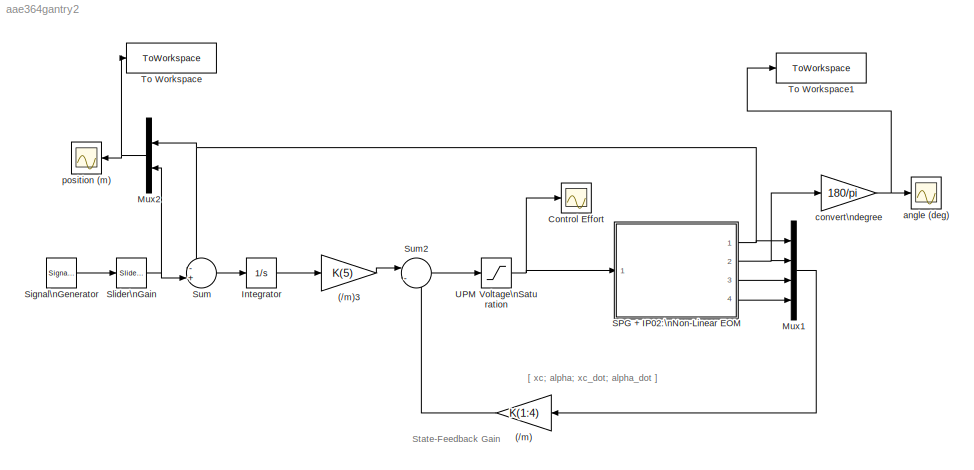
MODEL aae364gantry2
KIND model
BLOCK [Gain] (//m)
  Gain = K(1:4)
  Multiplication = Matrix(K*u)
  OutDataTypeStr = Inherit: Same as input
  ParamDataTypeStr = Inherit: Same as input
  SID = 1
  SaturateOnIntegerOverflow = on
BLOCK [Gain] (//m)3
  Gain = K(5)
  OutDataTypeStr = Inherit: Same as input
  ParamDataTypeStr = Inherit: Same as input
  SID = 2
  SaturateOnIntegerOverflow = on
BLOCK [Scope] Control Effort
  Floating = off
  NumInputPorts = 1
  Ports = [1]
  SID = 3
  ScopeSpecificationString = C++SS(StrPVP('Location','[7, 54, 784, 586]'),StrPVP('Open','off'),StrPVP('TickLabels','on'),MxPVP('AxesTitles',54,'struct(''axes1'',''%<SignalLabel>'')'),StrPVP('ShowLegends','off'),StrPVP('TimeRange','5'),StrPVP('YMin','-35'),StrPVP('YMax','35'),StrPVP('SaveName','ScopeData2'),StrPVP('BlockParamSampleTime','0'),StrPVP('LimitDataPoints','on'),StrPVP('DataFormat','Array'),StrPVP('Decimation','1'),S...<+37ch>
BLOCK [Integrator] Integrator
  Ports = [1, 1]
  SID = 4
BLOCK [Mux] Mux1
  DisplayOption = bar
  Ports = [4, 1]
  SID = 5
BLOCK [Mux] Mux2
  DisplayOption = bar
  Inputs = 2
  Ports = [2, 1]
  SID = 6
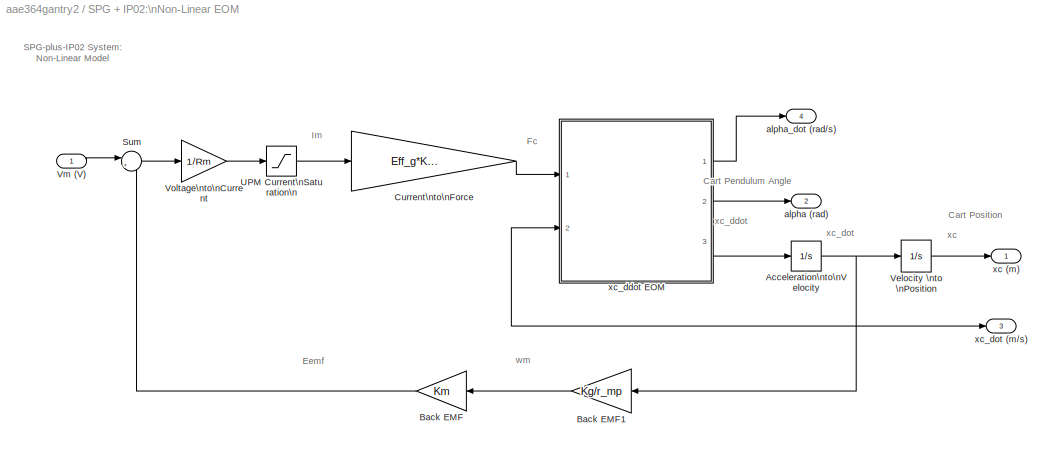
BLOCK [SubSystem] SPG + IP02:\nNon-Linear EOM
  Ports = [1, 4]
  RequestExecContextInheritance = off
  SID = 7
BLOCK [Integrator] SPG + IP02:\nNon-Linear EOM/Acceleration\nto\nVelocity
  Ports = [1, 1]
  SID = 9
BLOCK [Gain] SPG + IP02:\nNon-Linear EOM/Back EMF
  Gain = Km
  OutDataTypeStr = Inherit: Same as input
  ParamDataTypeStr = Inherit: Same as input
  SID = 10
  SaturateOnIntegerOverflow = on
BLOCK [Gain] SPG + IP02:\nNon-Linear EOM/Back EMF1
  Gain = Kg/r_mp
  OutDataTypeStr = Inherit: Same as input
  ParamDataTypeStr = Inherit: Same as input
  SID = 11
  SaturateOnIntegerOverflow = on
BLOCK [Gain] SPG + IP02:\nNon-Linear EOM/Current\nto\nForce
  Gain = Eff_g*Kg*Eff_m*Kt/r_mp
  OutDataTypeStr = Inherit: Same as input
  ParamDataTypeStr = Inherit: Same as input
  SID = 12
  SaturateOnIntegerOverflow = on
BLOCK [Sum] SPG + IP02:\nNon-Linear EOM/Sum
  InputSameDT = on
  Inputs = |+-
  OutDataTypeStr = Inherit: Same as first input
  Ports = [2, 1]
  SID = 13
  SaturateOnIntegerOverflow = on
BLOCK [Saturate] SPG + IP02:\nNon-Linear EOM/UPM Current\nSaturation\n
  LowerLimit = - IMAX_UPM
  SID = 14
  UpperLimit = IMAX_UPM
BLOCK [Integrator] SPG + IP02:\nNon-Linear EOM/Velocity \nto \nPosition
  Ports = [1, 1]
  SID = 15
BLOCK [Inport] SPG + IP02:\nNon-Linear EOM/Vm (V)
  SID = 8
BLOCK [Gain] SPG + IP02:\nNon-Linear EOM/Voltage\nto\nCurrent
  Gain = 1/Rm
  OutDataTypeStr = Inherit: Same as input
  ParamDataTypeStr = Inherit: Same as input
  SID = 16
  SaturateOnIntegerOverflow = on
BLOCK [Outport] SPG + IP02:\nNon-Linear EOM/alpha (rad)
  Port = 2
  SID = 105
BLOCK [Outport] SPG + IP02:\nNon-Linear EOM/alpha_dot (rad//s)
  InitialOutput = 0
  Port = 4
  SID = 107
BLOCK [Outport] SPG + IP02:\nNon-Linear EOM/xc (m)
  SID = 104
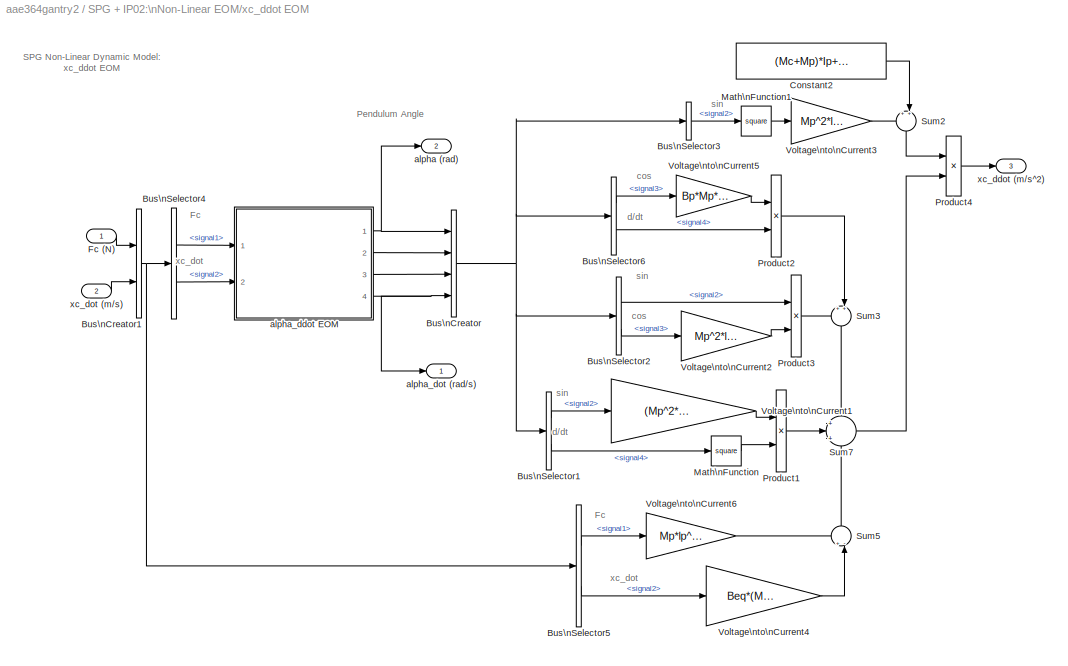
BLOCK [SubSystem] SPG + IP02:\nNon-Linear EOM/xc_ddot EOM
  Ports = [2, 3]
  RequestExecContextInheritance = off
  SID = 17
BLOCK [BusCreator] SPG + IP02:\nNon-Linear EOM/xc_ddot EOM/Bus\nCreator
  DisplayOption = bar
  InheritFromInputs = on
  Inputs = 4
  Ports = [4, 1]
  SID = 20
BLOCK [BusCreator] SPG + IP02:\nNon-Linear EOM/xc_ddot EOM/Bus\nCreator1
  DisplayOption = bar
  InheritFromInputs = on
  Inputs = 2
  Ports = [2, 1]
  SID = 21
BLOCK [BusSelector] SPG + IP02:\nNon-Linear EOM/xc_ddot EOM/Bus\nSelector1
  OutputSignals = signal2,signal4
  Ports = [1, 2]
  SID = 22
BLOCK [BusSelector] SPG + IP02:\nNon-Linear EOM/xc_ddot EOM/Bus\nSelector2
  OutputSignals = signal2,signal3
  Ports = [1, 2]
  SID = 23
BLOCK [BusSelector] SPG + IP02:\nNon-Linear EOM/xc_ddot EOM/Bus\nSelector3
  OutputSignals = signal2
  Ports = [1, 1]
  SID = 24
BLOCK [BusSelector] SPG + IP02:\nNon-Linear EOM/xc_ddot EOM/Bus\nSelector4
  OutputSignals = signal1,signal2
  Ports = [1, 2]
  SID = 25
BLOCK [BusSelector] SPG + IP02:\nNon-Linear EOM/xc_ddot EOM/Bus\nSelector5
  OutputSignals = signal1,signal2
  Ports = [1, 2]
  SID = 26
BLOCK [BusSelector] SPG + IP02:\nNon-Linear EOM/xc_ddot EOM/Bus\nSelector6
  OutputSignals = signal3,signal4
  Ports = [1, 2]
  SID = 27
BLOCK [Constant] SPG + IP02:\nNon-Linear EOM/xc_ddot EOM/Constant2
  SID = 28
  Value = (Mc+Mp)*Ip+Mc*Mp*lp^2
BLOCK [Inport] SPG + IP02:\nNon-Linear EOM/xc_ddot EOM/Fc (N)
  SID = 18
BLOCK [Math] SPG + IP02:\nNon-Linear EOM/xc_ddot EOM/Math\nFunction
  Operator = square
  Ports = [1, 1]
  SID = 29
  SignedPower = on
BLOCK [Math] SPG + IP02:\nNon-Linear EOM/xc_ddot EOM/Math\nFunction1
  Operator = square
  Ports = [1, 1]
  SID = 30
  SignedPower = on
BLOCK [Product] SPG + IP02:\nNon-Linear EOM/xc_ddot EOM/Product1
  InputSameDT = on
  OutDataTypeStr = Inherit: Same as first input
  Ports = [2, 1]
  RndMeth = Zero
  SID = 31
  SaturateOnIntegerOverflow = on
BLOCK [Product] SPG + IP02:\nNon-Linear EOM/xc_ddot EOM/Product2
  InputSameDT = on
  OutDataTypeStr = Inherit: Same as first input
  Ports = [2, 1]
  RndMeth = Zero
  SID = 32
  SaturateOnIntegerOverflow = on
BLOCK [Product] SPG + IP02:\nNon-Linear EOM/xc_ddot EOM/Product3
  InputSameDT = on
  OutDataTypeStr = Inherit: Same as first input
  Ports = [2, 1]
  RndMeth = Zero
  SID = 33
  SaturateOnIntegerOverflow = on
BLOCK [Product] SPG + IP02:\nNon-Linear EOM/xc_ddot EOM/Product4
  InputSameDT = on
  Inputs = /*
  OutDataTypeStr = Inherit: Same as first input
  Ports = [2, 1]
  RndMeth = Zero
  SID = 34
  SaturateOnIntegerOverflow = on
BLOCK [Sum] SPG + IP02:\nNon-Linear EOM/xc_ddot EOM/Sum2
  InputSameDT = on
  Inputs = ++|
  NameLocation = left
  OutDataTypeStr = Inherit: Same as first input
  Ports = [2, 1]
  SID = 35
  SaturateOnIntegerOverflow = on
BLOCK [Sum] SPG + IP02:\nNon-Linear EOM/xc_ddot EOM/Sum3
  InputSameDT = on
  Inputs = ++|
  NameLocation = left
  OutDataTypeStr = Inherit: Same as first input
  Ports = [2, 1]
  SID = 36
  SaturateOnIntegerOverflow = on
BLOCK [Sum] SPG + IP02:\nNon-Linear EOM/xc_ddot EOM/Sum5
  InputSameDT = on
  Inputs = +-|
  NameLocation = left
  OutDataTypeStr = Inherit: Same as first input
  Ports = [2, 1]
  SID = 37
  SaturateOnIntegerOverflow = on
BLOCK [Sum] SPG + IP02:\nNon-Linear EOM/xc_ddot EOM/Sum7
  InputSameDT = on
  Inputs = +|+|+
  OutDataTypeStr = Inherit: Same as first input
  Ports = [3, 1]
  SID = 38
  SaturateOnIntegerOverflow = on
BLOCK [Gain] SPG + IP02:\nNon-Linear EOM/xc_ddot EOM/Voltage\nto\nCurrent1
  Gain = (Mp^2*lp^3+Ip*Mp*lp)
  OutDataTypeStr = Inherit: Same as input
  ParamDataTypeStr = Inherit: Same as input
  SID = 39
  SaturateOnIntegerOverflow = on
BLOCK [Gain] SPG + IP02:\nNon-Linear EOM/xc_ddot EOM/Voltage\nto\nCurrent2
  Gain = Mp^2*lp^2*g
  OutDataTypeStr = Inherit: Same as input
  ParamDataTypeStr = Inherit: Same as input
  SID = 40
  SaturateOnIntegerOverflow = on
BLOCK [Gain] SPG + IP02:\nNon-Linear EOM/xc_ddot EOM/Voltage\nto\nCurrent3
  Gain = Mp^2*lp^2
  OutDataTypeStr = Inherit: Same as input
  ParamDataTypeStr = Inherit: Same as input
  SID = 41
  SaturateOnIntegerOverflow = on
BLOCK [Gain] SPG + IP02:\nNon-Linear EOM/xc_ddot EOM/Voltage\nto\nCurrent4
  Gain = Beq*(Mp*lp^2+Ip)
  OutDataTypeStr = Inherit: Same as input
  ParamDataTypeStr = Inherit: Same as input
  SID = 42
  SaturateOnIntegerOverflow = on
BLOCK [Gain] SPG + IP02:\nNon-Linear EOM/xc_ddot EOM/Voltage\nto\nCurrent5
  Gain = Bp*Mp*lp
  OutDataTypeStr = Inherit: Same as input
  ParamDataTypeStr = Inherit: Same as input
  SID = 43
  SaturateOnIntegerOverflow = on
BLOCK [Gain] SPG + IP02:\nNon-Linear EOM/xc_ddot EOM/Voltage\nto\nCurrent6
  Gain = Mp*lp^2+Ip
  OutDataTypeStr = Inherit: Same as input
  ParamDataTypeStr = Inherit: Same as input
  SID = 44
  SaturateOnIntegerOverflow = on
BLOCK [Outport] SPG + IP02:\nNon-Linear EOM/xc_ddot EOM/alpha (rad)
  Port = 2
  SID = 89
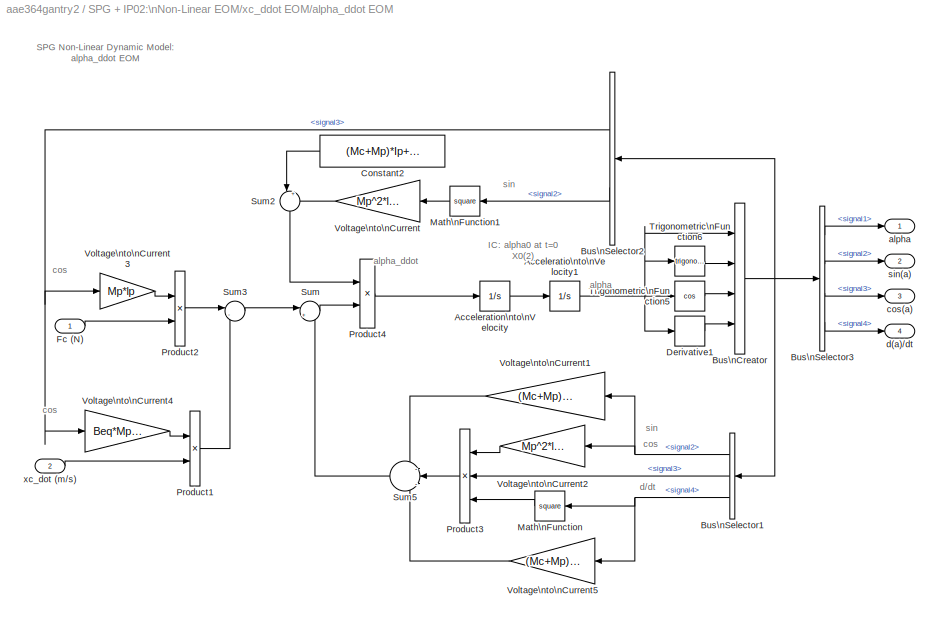
BLOCK [SubSystem] SPG + IP02:\nNon-Linear EOM/xc_ddot EOM/alpha_ddot EOM
  Ports = [2, 4]
  RequestExecContextInheritance = off
  SID = 45
BLOCK [Integrator] SPG + IP02:\nNon-Linear EOM/xc_ddot EOM/alpha_ddot EOM/Acceleratio\nto\nVelocity1
  InitialCondition = X0(2)
  Ports = [1, 1]
  SID = 48
BLOCK [Integrator] SPG + IP02:\nNon-Linear EOM/xc_ddot EOM/alpha_ddot EOM/Acceleration\nto\nVelocity
  Ports = [1, 1]
  SID = 49
BLOCK [BusCreator] SPG + IP02:\nNon-Linear EOM/xc_ddot EOM/alpha_ddot EOM/Bus\nCreator
  DisplayOption = bar
  InheritFromInputs = on
  Inputs = 4
  Ports = [4, 1]
  SID = 50
BLOCK [BusSelector] SPG + IP02:\nNon-Linear EOM/xc_ddot EOM/alpha_ddot EOM/Bus\nSelector1
  OutputSignals = signal2,signal3,signal4
  Ports = [1, 3]
  SID = 51
BLOCK [BusSelector] SPG + IP02:\nNon-Linear EOM/xc_ddot EOM/alpha_ddot EOM/Bus\nSelector2
  OutputSignals = signal3,signal2
  Ports = [1, 2]
  SID = 52
BLOCK [BusSelector] SPG + IP02:\nNon-Linear EOM/xc_ddot EOM/alpha_ddot EOM/Bus\nSelector3
  OutputSignals = signal1,signal2,signal3,signal4
  Ports = [1, 4]
  SID = 53
BLOCK [Constant] SPG + IP02:\nNon-Linear EOM/xc_ddot EOM/alpha_ddot EOM/Constant2
  SID = 54
  Value = (Mc+Mp)*Ip+Mc*Mp*lp^2
BLOCK [Derivative] SPG + IP02:\nNon-Linear EOM/xc_ddot EOM/alpha_ddot EOM/Derivative1
  SID = 55
BLOCK [Inport] SPG + IP02:\nNon-Linear EOM/xc_ddot EOM/alpha_ddot EOM/Fc (N)
  SID = 46
BLOCK [Math] SPG + IP02:\nNon-Linear EOM/xc_ddot EOM/alpha_ddot EOM/Math\nFunction
  Operator = square
  Ports = [1, 1]
  SID = 56
  SignedPower = on
BLOCK [Math] SPG + IP02:\nNon-Linear EOM/xc_ddot EOM/alpha_ddot EOM/Math\nFunction1
  Operator = square
  Ports = [1, 1]
  SID = 57
  SignedPower = on
BLOCK [Product] SPG + IP02:\nNon-Linear EOM/xc_ddot EOM/alpha_ddot EOM/Product1
  InputSameDT = on
  OutDataTypeStr = Inherit: Same as first input
  Ports = [2, 1]
  RndMeth = Zero
  SID = 58
  SaturateOnIntegerOverflow = on
BLOCK [Product] SPG + IP02:\nNon-Linear EOM/xc_ddot EOM/alpha_ddot EOM/Product2
  InputSameDT = on
  OutDataTypeStr = Inherit: Same as first input
  Ports = [2, 1]
  RndMeth = Zero
  SID = 59
  SaturateOnIntegerOverflow = on
BLOCK [Product] SPG + IP02:\nNon-Linear EOM/xc_ddot EOM/alpha_ddot EOM/Product3
  InputSameDT = on
  Inputs = 3
  OutDataTypeStr = Inherit: Same as first input
  Ports = [3, 1]
  RndMeth = Zero
  SID = 60
  SaturateOnIntegerOverflow = on
BLOCK [Product] SPG + IP02:\nNon-Linear EOM/xc_ddot EOM/alpha_ddot EOM/Product4
  InputSameDT = on
  Inputs = /*
  OutDataTypeStr = Inherit: Same as first input
  Ports = [2, 1]
  RndMeth = Zero
  SID = 61
  SaturateOnIntegerOverflow = on
BLOCK [Sum] SPG + IP02:\nNon-Linear EOM/xc_ddot EOM/alpha_ddot EOM/Sum
  InputSameDT = on
  Inputs = |++
  OutDataTypeStr = Inherit: Same as first input
  Ports = [2, 1]
  SID = 62
  SaturateOnIntegerOverflow = on
BLOCK [Sum] SPG + IP02:\nNon-Linear EOM/xc_ddot EOM/alpha_ddot EOM/Sum2
  InputSameDT = on
  Inputs = |++
  NameLocation = left
  OutDataTypeStr = Inherit: Same as first input
  Ports = [2, 1]
  SID = 63
  SaturateOnIntegerOverflow = on
BLOCK [Sum] SPG + IP02:\nNon-Linear EOM/xc_ddot EOM/alpha_ddot EOM/Sum3
  InputSameDT = on
  Inputs = |-+
  OutDataTypeStr = Inherit: Same as first input
  Ports = [2, 1]
  SID = 64
  SaturateOnIntegerOverflow = on
BLOCK [Sum] SPG + IP02:\nNon-Linear EOM/xc_ddot EOM/alpha_ddot EOM/Sum5
  InputSameDT = on
  Inputs = -|-|-
  OutDataTypeStr = Inherit: Same as first input
  Ports = [3, 1]
  SID = 65
  SaturateOnIntegerOverflow = on
BLOCK [Trigonometry] SPG + IP02:\nNon-Linear EOM/xc_ddot EOM/alpha_ddot EOM/Trigonometric\nFunction5
  Operator = cos
  Ports = [1, 1]
  SID = 66
BLOCK [Trigonometry] SPG + IP02:\nNon-Linear EOM/xc_ddot EOM/alpha_ddot EOM/Trigonometric\nFunction6
  Ports = [1, 1]
  SID = 67
BLOCK [Gain] SPG + IP02:\nNon-Linear EOM/xc_ddot EOM/alpha_ddot EOM/Voltage\nto\nCurrent
  Gain = Mp^2*lp^2
  OutDataTypeStr = Inherit: Same as input
  ParamDataTypeStr = Inherit: Same as input
  SID = 68
  SaturateOnIntegerOverflow = on
BLOCK [Gain] SPG + IP02:\nNon-Linear EOM/xc_ddot EOM/alpha_ddot EOM/Voltage\nto\nCurrent1
  Gain = (Mc+Mp)*Mp*lp*g
  OutDataTypeStr = Inherit: Same as input
  ParamDataTypeStr = Inherit: Same as input
  SID = 69
  SaturateOnIntegerOverflow = on
BLOCK [Gain] SPG + IP02:\nNon-Linear EOM/xc_ddot EOM/alpha_ddot EOM/Voltage\nto\nCurrent2
  Gain = Mp^2*lp^2
  OutDataTypeStr = Inherit: Same as input
  ParamDataTypeStr = Inherit: Same as input
  SID = 70
  SaturateOnIntegerOverflow = on
BLOCK [Gain] SPG + IP02:\nNon-Linear EOM/xc_ddot EOM/alpha_ddot EOM/Voltage\nto\nCurrent3
  Gain = Mp*lp
  OutDataTypeStr = Inherit: Same as input
  ParamDataTypeStr = Inherit: Same as input
  SID = 71
  SaturateOnIntegerOverflow = on
BLOCK [Gain] SPG + IP02:\nNon-Linear EOM/xc_ddot EOM/alpha_ddot EOM/Voltage\nto\nCurrent4
  Gain = Beq*Mp*lp
  OutDataTypeStr = Inherit: Same as input
  ParamDataTypeStr = Inherit: Same as input
  SID = 72
  SaturateOnIntegerOverflow = on
BLOCK [Gain] SPG + IP02:\nNon-Linear EOM/xc_ddot EOM/alpha_ddot EOM/Voltage\nto\nCurrent5
  Gain = (Mc+Mp)*Bp
  OutDataTypeStr = Inherit: Same as input
  ParamDataTypeStr = Inherit: Same as input
  SID = 73
  SaturateOnIntegerOverflow = on
BLOCK [Outport] SPG + IP02:\nNon-Linear EOM/xc_ddot EOM/alpha_ddot EOM/alpha
  InitialOutput = 0
  SID = 74
BLOCK [Outport] SPG + IP02:\nNon-Linear EOM/xc_ddot EOM/alpha_ddot EOM/cos(a)
  InitialOutput = 0
  Port = 3
  SID = 76
BLOCK [Outport] SPG + IP02:\nNon-Linear EOM/xc_ddot EOM/alpha_ddot EOM/d(a)//dt
  InitialOutput = 0
  Port = 4
  SID = 77
BLOCK [Outport] SPG + IP02:\nNon-Linear EOM/xc_ddot EOM/alpha_ddot EOM/sin(a)
  InitialOutput = 0
  Port = 2
  SID = 75
BLOCK [Inport] SPG + IP02:\nNon-Linear EOM/xc_ddot EOM/alpha_ddot EOM/xc_dot (m//s)
  Port = 2
  SID = 47
BLOCK [Outport] SPG + IP02:\nNon-Linear EOM/xc_ddot EOM/alpha_dot (rad//s)
  SID = 88
BLOCK [Outport] SPG + IP02:\nNon-Linear EOM/xc_ddot EOM/xc_ddot (m//s^2)
  Port = 3
  SID = 90
BLOCK [Inport] SPG + IP02:\nNon-Linear EOM/xc_ddot EOM/xc_dot (m//s)
  Port = 2
  SID = 19
BLOCK [Outport] SPG + IP02:\nNon-Linear EOM/xc_dot (m//s)
  InitialOutput = 0
  Port = 3
  SID = 106
BLOCK [SignalGenerator] Signal\nGenerator
  Amplitude = .5
  Frequency = .1
  Ports = [0, 1]
  SID = 128
  WaveForm = square
BLOCK [Reference] Slider\nGain  REF=simulink/Math\nOperations/Slider\nGain
  Ports = [1, 1]
  RTWMemSecDataConstants = Inherit from model
  RTWMemSecDataInternal = Inherit from model
  RTWMemSecDataParameters = Inherit from model
  RTWMemSecFuncExecute = Inherit from model
  RTWMemSecFuncInitTerm = Inherit from model
  SID = 118
  SourceBlock = simulink/Math\nOperations/Slider\nGain
  SourceProductBaseCode = SL
  SourceType = Slider Gain
  gain = 0.5
  high = 2
  low = 0
BLOCK [Sum] Sum
  Inputs = -+|
  Ports = [2, 1]
  SID = 120
BLOCK [Sum] Sum2
  InputSameDT = on
  Inputs = |--
  OutDataTypeStr = Inherit: Same as first input
  Ports = [2, 1]
  SID = 121
  SaturateOnIntegerOverflow = on
BLOCK [ToWorkspace] To Workspace
  FixptAsFi = on
  MaxDataPoints = inf
  Ports = [1]
  SID = 129
  SampleTime = -1
  SaveFormat = Timeseries
  VariableName = possy
BLOCK [ToWorkspace] To Workspace1
  FixptAsFi = on
  MaxDataPoints = inf
  Ports = [1]
  SID = 130
  SampleTime = -1
  SaveFormat = Timeseries
  VariableName = angle
BLOCK [Saturate] UPM Voltage\nSaturation
  LowerLimit = - VMAX_UPM
  SID = 122
  UpperLimit = VMAX_UPM
BLOCK [Scope] angle (deg)
  Floating = off
  NumInputPorts = 1
  Ports = [1]
  SID = 123
  ScopeSpecificationString = Simulink.scopes.TimeScopeBlockCfg('CurrentConfiguration', extmgr.ConfigurationSet(extmgr.Configuration('Core','General UI',true),extmgr.Configuration('Core','Source UI',true),extmgr.Configuration('Sources','WiredSimulink',true,'DataLoggingVariableName','ScopeData3','DataLoggingSaveFormat','StructureWithTime','DataLoggingDecimation','1','DataLoggingDecimateData',true),extmgr.Configuration('Visuals'...<+1654ch>
BLOCK [Gain] convert\ndegree
  Gain = 180/pi
  SID = 124
BLOCK [Scope] position (m)
  Floating = off
  NumInputPorts = 1
  Ports = [1]
  SID = 125
  ScopeSpecificationString = Simulink.scopes.TimeScopeBlockCfg('CurrentConfiguration', extmgr.ConfigurationSet(extmgr.Configuration('Core','General UI',true),extmgr.Configuration('Core','Source UI',true),extmgr.Configuration('Sources','WiredSimulink',true,'DataLoggingSaveFormat','StructureWithTime','DataLoggingDecimation','1','DataLoggingDecimateData',true),extmgr.Configuration('Visuals','Time Domain',true,'SerializedDisplays...<+1640ch>
ANNOTATION (root): [ xc; alpha; xc_dot; alpha_dot ]
ANNOTATION (root): State-Feedback Gain
ANNOTATION SPG + IP02:\nNon-Linear EOM: Cart Pendulum Angle
ANNOTATION SPG + IP02:\nNon-Linear EOM: Cart Position
ANNOTATION SPG + IP02:\nNon-Linear EOM: Eemf
ANNOTATION SPG + IP02:\nNon-Linear EOM: Fc
ANNOTATION SPG + IP02:\nNon-Linear EOM: Im
ANNOTATION SPG + IP02:\nNon-Linear EOM: SPG-plus-IP02 System:\nNon-Linear Model
ANNOTATION SPG + IP02:\nNon-Linear EOM: wm
ANNOTATION SPG + IP02:\nNon-Linear EOM: xc
ANNOTATION SPG + IP02:\nNon-Linear EOM: xc_ddot
ANNOTATION SPG + IP02:\nNon-Linear EOM: xc_dot
ANNOTATION SPG + IP02:\nNon-Linear EOM/xc_ddot EOM: Fc
ANNOTATION SPG + IP02:\nNon-Linear EOM/xc_ddot EOM: Pendulum Angle
ANNOTATION SPG + IP02:\nNon-Linear EOM/xc_ddot EOM: SPG Non-Linear Dynamic Model:\nxc_ddot EOM
ANNOTATION SPG + IP02:\nNon-Linear EOM/xc_ddot EOM: cos
ANNOTATION SPG + IP02:\nNon-Linear EOM/xc_ddot EOM: d/dt
ANNOTATION SPG + IP02:\nNon-Linear EOM/xc_ddot EOM: sin
ANNOTATION SPG + IP02:\nNon-Linear EOM/xc_ddot EOM: xc_dot
ANNOTATION SPG + IP02:\nNon-Linear EOM/xc_ddot EOM/alpha_ddot EOM: IC: alpha0 at t=0\nX0(2)
ANNOTATION SPG + IP02:\nNon-Linear EOM/xc_ddot EOM/alpha_ddot EOM: SPG Non-Linear Dynamic Model:\nalpha_ddot EOM
ANNOTATION SPG + IP02:\nNon-Linear EOM/xc_ddot EOM/alpha_ddot EOM: alpha
ANNOTATION SPG + IP02:\nNon-Linear EOM/xc_ddot EOM/alpha_ddot EOM: alpha_ddot
ANNOTATION SPG + IP02:\nNon-Linear EOM/xc_ddot EOM/alpha_ddot EOM: cos
ANNOTATION SPG + IP02:\nNon-Linear EOM/xc_ddot EOM/alpha_ddot EOM: d/dt
ANNOTATION SPG + IP02:\nNon-Linear EOM/xc_ddot EOM/alpha_ddot EOM: sin
LINE (//m)3:1 -> Sum2:1
LINE (//m):1 -> Sum2:2
LINE Integrator:1 -> (//m)3:1
LINE Mux1:1 -> (//m):1
NET Mux2:1 -> To Workspace:1, position (m):1
NET SPG + IP02:\nNon-Linear EOM/Acceleration\nto\nVelocity:1 -> SPG + IP02:\nNon-Linear EOM/Back EMF1:1, SPG + IP02:\nNon-Linear EOM/Velocity \nto \nPosition:1, SPG + IP02:\nNon-Linear EOM/xc_ddot EOM:2, SPG + IP02:\nNon-Linear EOM/xc_dot (m//s):1
LINE SPG + IP02:\nNon-Linear EOM/Back EMF1:1 -> SPG + IP02:\nNon-Linear EOM/Back EMF:1
LINE SPG + IP02:\nNon-Linear EOM/Back EMF:1 -> SPG + IP02:\nNon-Linear EOM/Sum:2
LINE SPG + IP02:\nNon-Linear EOM/Current\nto\nForce:1 -> SPG + IP02:\nNon-Linear EOM/xc_ddot EOM:1
LINE SPG + IP02:\nNon-Linear EOM/Sum:1 -> SPG + IP02:\nNon-Linear EOM/Voltage\nto\nCurrent:1
LINE SPG + IP02:\nNon-Linear EOM/UPM Current\nSaturation\n:1 -> SPG + IP02:\nNon-Linear EOM/Current\nto\nForce:1
LINE SPG + IP02:\nNon-Linear EOM/Velocity \nto \nPosition:1 -> SPG + IP02:\nNon-Linear EOM/xc (m):1
LINE SPG + IP02:\nNon-Linear EOM/Vm (V):1 -> SPG + IP02:\nNon-Linear EOM/Sum:1
LINE SPG + IP02:\nNon-Linear EOM/Voltage\nto\nCurrent:1 -> SPG + IP02:\nNon-Linear EOM/UPM Current\nSaturation\n:1
NET SPG + IP02:\nNon-Linear EOM/xc_ddot EOM/Bus\nCreator1:1 -> SPG + IP02:\nNon-Linear EOM/xc_ddot EOM/Bus\nSelector4:1, SPG + IP02:\nNon-Linear EOM/xc_ddot EOM/Bus\nSelector5:1
NET SPG + IP02:\nNon-Linear EOM/xc_ddot EOM/Bus\nCreator:1 -> SPG + IP02:\nNon-Linear EOM/xc_ddot EOM/Bus\nSelector1:1, SPG + IP02:\nNon-Linear EOM/xc_ddot EOM/Bus\nSelector2:1, SPG + IP02:\nNon-Linear EOM/xc_ddot EOM/Bus\nSelector3:1, SPG + IP02:\nNon-Linear EOM/xc_ddot EOM/Bus\nSelector6:1
LINE SPG + IP02:\nNon-Linear EOM/xc_ddot EOM/Bus\nSelector1:1 -> SPG + IP02:\nNon-Linear EOM/xc_ddot EOM/Voltage\nto\nCurrent1:1
LINE SPG + IP02:\nNon-Linear EOM/xc_ddot EOM/Bus\nSelector1:2 -> SPG + IP02:\nNon-Linear EOM/xc_ddot EOM/Math\nFunction:1
LINE SPG + IP02:\nNon-Linear EOM/xc_ddot EOM/Bus\nSelector2:1 -> SPG + IP02:\nNon-Linear EOM/xc_ddot EOM/Product3:1
LINE SPG + IP02:\nNon-Linear EOM/xc_ddot EOM/Bus\nSelector2:2 -> SPG + IP02:\nNon-Linear EOM/xc_ddot EOM/Voltage\nto\nCurrent2:1
LINE SPG + IP02:\nNon-Linear EOM/xc_ddot EOM/Bus\nSelector3:1 -> SPG + IP02:\nNon-Linear EOM/xc_ddot EOM/Math\nFunction1:1
LINE SPG + IP02:\nNon-Linear EOM/xc_ddot EOM/Bus\nSelector4:1 -> SPG + IP02:\nNon-Linear EOM/xc_ddot EOM/alpha_ddot EOM:1
LINE SPG + IP02:\nNon-Linear EOM/xc_ddot EOM/Bus\nSelector4:2 -> SPG + IP02:\nNon-Linear EOM/xc_ddot EOM/alpha_ddot EOM:2
LINE SPG + IP02:\nNon-Linear EOM/xc_ddot EOM/Bus\nSelector5:1 -> SPG + IP02:\nNon-Linear EOM/xc_ddot EOM/Voltage\nto\nCurrent6:1
LINE SPG + IP02:\nNon-Linear EOM/xc_ddot EOM/Bus\nSelector5:2 -> SPG + IP02:\nNon-Linear EOM/xc_ddot EOM/Voltage\nto\nCurrent4:1
LINE SPG + IP02:\nNon-Linear EOM/xc_ddot EOM/Bus\nSelector6:1 -> SPG + IP02:\nNon-Linear EOM/xc_ddot EOM/Voltage\nto\nCurrent5:1
LINE SPG + IP02:\nNon-Linear EOM/xc_ddot EOM/Bus\nSelector6:2 -> SPG + IP02:\nNon-Linear EOM/xc_ddot EOM/Product2:2
LINE SPG + IP02:\nNon-Linear EOM/xc_ddot EOM/Constant2:1 -> SPG + IP02:\nNon-Linear EOM/xc_ddot EOM/Sum2:2
LINE SPG + IP02:\nNon-Linear EOM/xc_ddot EOM/Fc (N):1 -> SPG + IP02:\nNon-Linear EOM/xc_ddot EOM/Bus\nCreator1:1
LINE SPG + IP02:\nNon-Linear EOM/xc_ddot EOM/Math\nFunction1:1 -> SPG + IP02:\nNon-Linear EOM/xc_ddot EOM/Voltage\nto\nCurrent3:1
LINE SPG + IP02:\nNon-Linear EOM/xc_ddot EOM/Math\nFunction:1 -> SPG + IP02:\nNon-Linear EOM/xc_ddot EOM/Product1:2
LINE SPG + IP02:\nNon-Linear EOM/xc_ddot EOM/Product1:1 -> SPG + IP02:\nNon-Linear EOM/xc_ddot EOM/Sum7:2
LINE SPG + IP02:\nNon-Linear EOM/xc_ddot EOM/Product2:1 -> SPG + IP02:\nNon-Linear EOM/xc_ddot EOM/Sum3:2
LINE SPG + IP02:\nNon-Linear EOM/xc_ddot EOM/Product3:1 -> SPG + IP02:\nNon-Linear EOM/xc_ddot EOM/Sum3:1
LINE SPG + IP02:\nNon-Linear EOM/xc_ddot EOM/Product4:1 -> SPG + IP02:\nNon-Linear EOM/xc_ddot EOM/xc_ddot (m//s^2):1
LINE SPG + IP02:\nNon-Linear EOM/xc_ddot EOM/Sum2:1 -> SPG + IP02:\nNon-Linear EOM/xc_ddot EOM/Product4:1
LINE SPG + IP02:\nNon-Linear EOM/xc_ddot EOM/Sum3:1 -> SPG + IP02:\nNon-Linear EOM/xc_ddot EOM/Sum7:1
LINE SPG + IP02:\nNon-Linear EOM/xc_ddot EOM/Sum5:1 -> SPG + IP02:\nNon-Linear EOM/xc_ddot EOM/Sum7:3
LINE SPG + IP02:\nNon-Linear EOM/xc_ddot EOM/Sum7:1 -> SPG + IP02:\nNon-Linear EOM/xc_ddot EOM/Product4:2
LINE SPG + IP02:\nNon-Linear EOM/xc_ddot EOM/Voltage\nto\nCurrent1:1 -> SPG + IP02:\nNon-Linear EOM/xc_ddot EOM/Product1:1
LINE SPG + IP02:\nNon-Linear EOM/xc_ddot EOM/Voltage\nto\nCurrent2:1 -> SPG + IP02:\nNon-Linear EOM/xc_ddot EOM/Product3:2
LINE SPG + IP02:\nNon-Linear EOM/xc_ddot EOM/Voltage\nto\nCurrent3:1 -> SPG + IP02:\nNon-Linear EOM/xc_ddot EOM/Sum2:1
LINE SPG + IP02:\nNon-Linear EOM/xc_ddot EOM/Voltage\nto\nCurrent4:1 -> SPG + IP02:\nNon-Linear EOM/xc_ddot EOM/Sum5:2
LINE SPG + IP02:\nNon-Linear EOM/xc_ddot EOM/Voltage\nto\nCurrent5:1 -> SPG + IP02:\nNon-Linear EOM/xc_ddot EOM/Product2:1
LINE SPG + IP02:\nNon-Linear EOM/xc_ddot EOM/Voltage\nto\nCurrent6:1 -> SPG + IP02:\nNon-Linear EOM/xc_ddot EOM/Sum5:1
NET SPG + IP02:\nNon-Linear EOM/xc_ddot EOM/alpha_ddot EOM/Acceleratio\nto\nVelocity1:1 -> SPG + IP02:\nNon-Linear EOM/xc_ddot EOM/alpha_ddot EOM/Bus\nCreator:1, SPG + IP02:\nNon-Linear EOM/xc_ddot EOM/alpha_ddot EOM/Derivative1:1, SPG + IP02:\nNon-Linear EOM/xc_ddot EOM/alpha_ddot EOM/Trigonometric\nFunction5:1, SPG + IP02:\nNon-Linear EOM/xc_ddot EOM/alpha_ddot EOM/Trigonometric\nFunction6:1
LINE SPG + IP02:\nNon-Linear EOM/xc_ddot EOM/alpha_ddot EOM/Acceleration\nto\nVelocity:1 -> SPG + IP02:\nNon-Linear EOM/xc_ddot EOM/alpha_ddot EOM/Acceleratio\nto\nVelocity1:1
NET SPG + IP02:\nNon-Linear EOM/xc_ddot EOM/alpha_ddot EOM/Bus\nCreator:1 -> SPG + IP02:\nNon-Linear EOM/xc_ddot EOM/alpha_ddot EOM/Bus\nSelector1:1, SPG + IP02:\nNon-Linear EOM/xc_ddot EOM/alpha_ddot EOM/Bus\nSelector2:1, SPG + IP02:\nNon-Linear EOM/xc_ddot EOM/alpha_ddot EOM/Bus\nSelector3:1
NET SPG + IP02:\nNon-Linear EOM/xc_ddot EOM/alpha_ddot EOM/Bus\nSelector1:1 -> SPG + IP02:\nNon-Linear EOM/xc_ddot EOM/alpha_ddot EOM/Voltage\nto\nCurrent1:1, SPG + IP02:\nNon-Linear EOM/xc_ddot EOM/alpha_ddot EOM/Voltage\nto\nCurrent2:1
LINE SPG + IP02:\nNon-Linear EOM/xc_ddot EOM/alpha_ddot EOM/Bus\nSelector1:2 -> SPG + IP02:\nNon-Linear EOM/xc_ddot EOM/alpha_ddot EOM/Product3:2
NET SPG + IP02:\nNon-Linear EOM/xc_ddot EOM/alpha_ddot EOM/Bus\nSelector1:3 -> SPG + IP02:\nNon-Linear EOM/xc_ddot EOM/alpha_ddot EOM/Math\nFunction:1, SPG + IP02:\nNon-Linear EOM/xc_ddot EOM/alpha_ddot EOM/Voltage\nto\nCurrent5:1
NET SPG + IP02:\nNon-Linear EOM/xc_ddot EOM/alpha_ddot EOM/Bus\nSelector2:1 -> SPG + IP02:\nNon-Linear EOM/xc_ddot EOM/alpha_ddot EOM/Voltage\nto\nCurrent3:1, SPG + IP02:\nNon-Linear EOM/xc_ddot EOM/alpha_ddot EOM/Voltage\nto\nCurrent4:1
LINE SPG + IP02:\nNon-Linear EOM/xc_ddot EOM/alpha_ddot EOM/Bus\nSelector2:2 -> SPG + IP02:\nNon-Linear EOM/xc_ddot EOM/alpha_ddot EOM/Math\nFunction1:1
LINE SPG + IP02:\nNon-Linear EOM/xc_ddot EOM/alpha_ddot EOM/Bus\nSelector3:1 -> SPG + IP02:\nNon-Linear EOM/xc_ddot EOM/alpha_ddot EOM/alpha:1
LINE SPG + IP02:\nNon-Linear EOM/xc_ddot EOM/alpha_ddot EOM/Bus\nSelector3:2 -> SPG + IP02:\nNon-Linear EOM/xc_ddot EOM/alpha_ddot EOM/sin(a):1
LINE SPG + IP02:\nNon-Linear EOM/xc_ddot EOM/alpha_ddot EOM/Bus\nSelector3:3 -> SPG + IP02:\nNon-Linear EOM/xc_ddot EOM/alpha_ddot EOM/cos(a):1
LINE SPG + IP02:\nNon-Linear EOM/xc_ddot EOM/alpha_ddot EOM/Bus\nSelector3:4 -> SPG + IP02:\nNon-Linear EOM/xc_ddot EOM/alpha_ddot EOM/d(a)//dt:1
LINE SPG + IP02:\nNon-Linear EOM/xc_ddot EOM/alpha_ddot EOM/Constant2:1 -> SPG + IP02:\nNon-Linear EOM/xc_ddot EOM/alpha_ddot EOM/Sum2:1
LINE SPG + IP02:\nNon-Linear EOM/xc_ddot EOM/alpha_ddot EOM/Derivative1:1 -> SPG + IP02:\nNon-Linear EOM/xc_ddot EOM/alpha_ddot EOM/Bus\nCreator:4
LINE SPG + IP02:\nNon-Linear EOM/xc_ddot EOM/alpha_ddot EOM/Fc (N):1 -> SPG + IP02:\nNon-Linear EOM/xc_ddot EOM/alpha_ddot EOM/Product2:2
LINE SPG + IP02:\nNon-Linear EOM/xc_ddot EOM/alpha_ddot EOM/Math\nFunction1:1 -> SPG + IP02:\nNon-Linear EOM/xc_ddot EOM/alpha_ddot EOM/Voltage\nto\nCurrent:1
LINE SPG + IP02:\nNon-Linear EOM/xc_ddot EOM/alpha_ddot EOM/Math\nFunction:1 -> SPG + IP02:\nNon-Linear EOM/xc_ddot EOM/alpha_ddot EOM/Product3:3
LINE SPG + IP02:\nNon-Linear EOM/xc_ddot EOM/alpha_ddot EOM/Product1:1 -> SPG + IP02:\nNon-Linear EOM/xc_ddot EOM/alpha_ddot EOM/Sum3:2
LINE SPG + IP02:\nNon-Linear EOM/xc_ddot EOM/alpha_ddot EOM/Product2:1 -> SPG + IP02:\nNon-Linear EOM/xc_ddot EOM/alpha_ddot EOM/Sum3:1
LINE SPG + IP02:\nNon-Linear EOM/xc_ddot EOM/alpha_ddot EOM/Product3:1 -> SPG + IP02:\nNon-Linear EOM/xc_ddot EOM/alpha_ddot EOM/Sum5:2
LINE SPG + IP02:\nNon-Linear EOM/xc_ddot EOM/alpha_ddot EOM/Product4:1 -> SPG + IP02:\nNon-Linear EOM/xc_ddot EOM/alpha_ddot EOM/Acceleration\nto\nVelocity:1
LINE SPG + IP02:\nNon-Linear EOM/xc_ddot EOM/alpha_ddot EOM/Sum2:1 -> SPG + IP02:\nNon-Linear EOM/xc_ddot EOM/alpha_ddot EOM/Product4:1
LINE SPG + IP02:\nNon-Linear EOM/xc_ddot EOM/alpha_ddot EOM/Sum3:1 -> SPG + IP02:\nNon-Linear EOM/xc_ddot EOM/alpha_ddot EOM/Sum:1
LINE SPG + IP02:\nNon-Linear EOM/xc_ddot EOM/alpha_ddot EOM/Sum5:1 -> SPG + IP02:\nNon-Linear EOM/xc_ddot EOM/alpha_ddot EOM/Sum:2
LINE SPG + IP02:\nNon-Linear EOM/xc_ddot EOM/alpha_ddot EOM/Sum:1 -> SPG + IP02:\nNon-Linear EOM/xc_ddot EOM/alpha_ddot EOM/Product4:2
LINE SPG + IP02:\nNon-Linear EOM/xc_ddot EOM/alpha_ddot EOM/Trigonometric\nFunction5:1 -> SPG + IP02:\nNon-Linear EOM/xc_ddot EOM/alpha_ddot EOM/Bus\nCreator:3
LINE SPG + IP02:\nNon-Linear EOM/xc_ddot EOM/alpha_ddot EOM/Trigonometric\nFunction6:1 -> SPG + IP02:\nNon-Linear EOM/xc_ddot EOM/alpha_ddot EOM/Bus\nCreator:2
LINE SPG + IP02:\nNon-Linear EOM/xc_ddot EOM/alpha_ddot EOM/Voltage\nto\nCurrent1:1 -> SPG + IP02:\nNon-Linear EOM/xc_ddot EOM/alpha_ddot EOM/Sum5:1
LINE SPG + IP02:\nNon-Linear EOM/xc_ddot EOM/alpha_ddot EOM/Voltage\nto\nCurrent2:1 -> SPG + IP02:\nNon-Linear EOM/xc_ddot EOM/alpha_ddot EOM/Product3:1
LINE SPG + IP02:\nNon-Linear EOM/xc_ddot EOM/alpha_ddot EOM/Voltage\nto\nCurrent3:1 -> SPG + IP02:\nNon-Linear EOM/xc_ddot EOM/alpha_ddot EOM/Product2:1
LINE SPG + IP02:\nNon-Linear EOM/xc_ddot EOM/alpha_ddot EOM/Voltage\nto\nCurrent4:1 -> SPG + IP02:\nNon-Linear EOM/xc_ddot EOM/alpha_ddot EOM/Product1:1
LINE SPG + IP02:\nNon-Linear EOM/xc_ddot EOM/alpha_ddot EOM/Voltage\nto\nCurrent5:1 -> SPG + IP02:\nNon-Linear EOM/xc_ddot EOM/alpha_ddot EOM/Sum5:3
LINE SPG + IP02:\nNon-Linear EOM/xc_ddot EOM/alpha_ddot EOM/Voltage\nto\nCurrent:1 -> SPG + IP02:\nNon-Linear EOM/xc_ddot EOM/alpha_ddot EOM/Sum2:2
LINE SPG + IP02:\nNon-Linear EOM/xc_ddot EOM/alpha_ddot EOM/xc_dot (m//s):1 -> SPG + IP02:\nNon-Linear EOM/xc_ddot EOM/alpha_ddot EOM/Product1:2
NET SPG + IP02:\nNon-Linear EOM/xc_ddot EOM/alpha_ddot EOM:1 -> SPG + IP02:\nNon-Linear EOM/xc_ddot EOM/Bus\nCreator:1, SPG + IP02:\nNon-Linear EOM/xc_ddot EOM/alpha (rad):1
LINE SPG + IP02:\nNon-Linear EOM/xc_ddot EOM/alpha_ddot EOM:2 -> SPG + IP02:\nNon-Linear EOM/xc_ddot EOM/Bus\nCreator:2
LINE SPG + IP02:\nNon-Linear EOM/xc_ddot EOM/alpha_ddot EOM:3 -> SPG + IP02:\nNon-Linear EOM/xc_ddot EOM/Bus\nCreator:3
NET SPG + IP02:\nNon-Linear EOM/xc_ddot EOM/alpha_ddot EOM:4 -> SPG + IP02:\nNon-Linear EOM/xc_ddot EOM/Bus\nCreator:4, SPG + IP02:\nNon-Linear EOM/xc_ddot EOM/alpha_dot (rad//s):1
LINE SPG + IP02:\nNon-Linear EOM/xc_ddot EOM/xc_dot (m//s):1 -> SPG + IP02:\nNon-Linear EOM/xc_ddot EOM/Bus\nCreator1:2
LINE SPG + IP02:\nNon-Linear EOM/xc_ddot EOM:1 -> SPG + IP02:\nNon-Linear EOM/alpha_dot (rad//s):1
LINE SPG + IP02:\nNon-Linear EOM/xc_ddot EOM:2 -> SPG + IP02:\nNon-Linear EOM/alpha (rad):1
LINE SPG + IP02:\nNon-Linear EOM/xc_ddot EOM:3 -> SPG + IP02:\nNon-Linear EOM/Acceleration\nto\nVelocity:1
NET SPG + IP02:\nNon-Linear EOM:1 -> Mux1:1, Mux2:1, Sum:1
NET SPG + IP02:\nNon-Linear EOM:2 -> Mux1:2, convert\ndegree:1
LINE SPG + IP02:\nNon-Linear EOM:3 -> Mux1:3
LINE SPG + IP02:\nNon-Linear EOM:4 -> Mux1:4
LINE Signal\nGenerator:1 -> Slider\nGain:1
NET Slider\nGain:1 -> Mux2:2, Sum:2
LINE Sum2:1 -> UPM Voltage\nSaturation:1
LINE Sum:1 -> Integrator:1
NET UPM Voltage\nSaturation:1 -> Control Effort:1, SPG + IP02:\nNon-Linear EOM:1
NET convert\ndegree:1 -> To Workspace1:1, angle (deg):1
note: NET lines group one-source signal fan-out (src -> all destinations, sorted); 1:1 wires keep LINE
